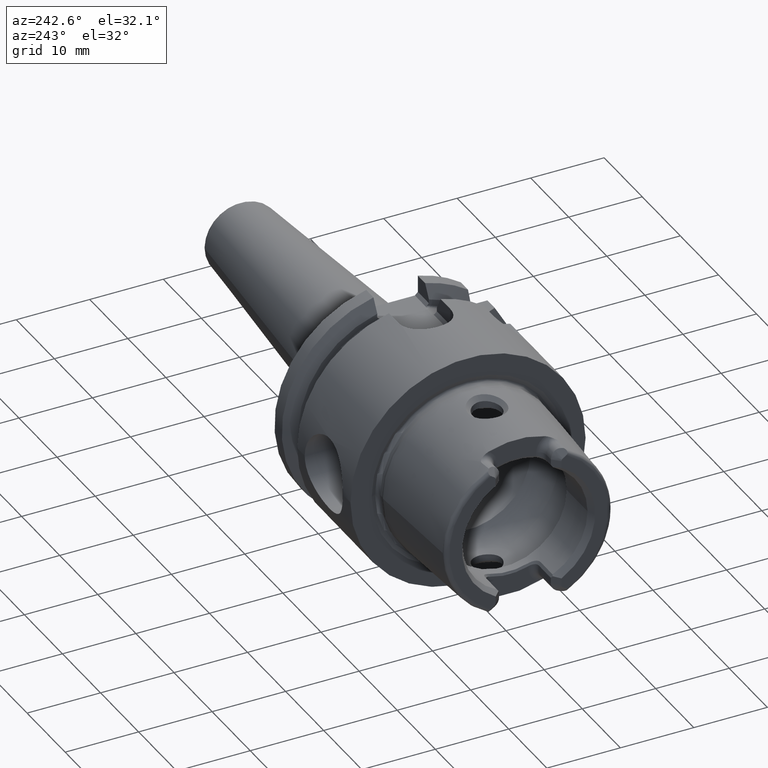
[diagram: clean part render]
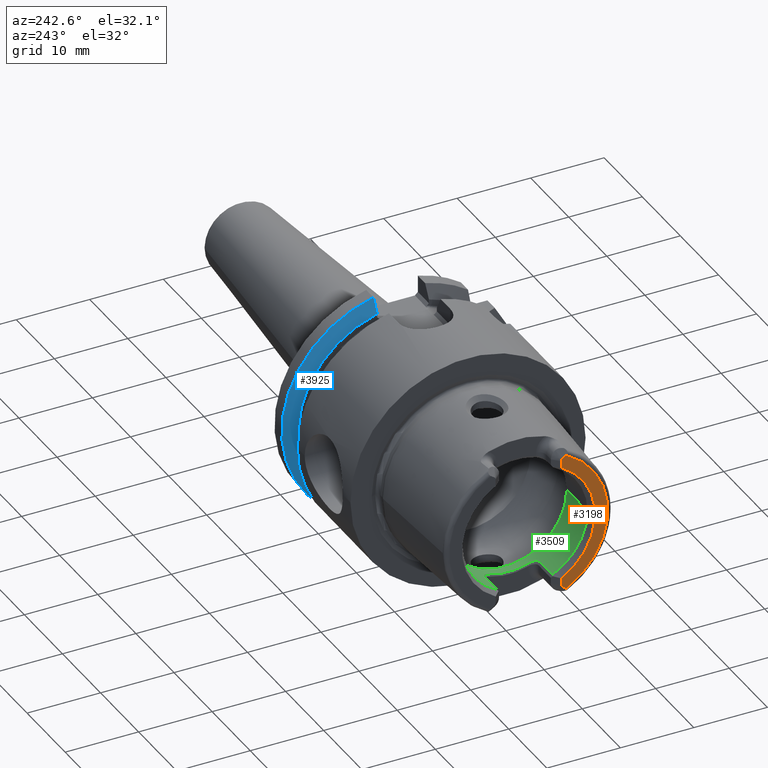
[diagram: same view with three faces highlighted in distinct colors, each labeled with its STEP entity id]
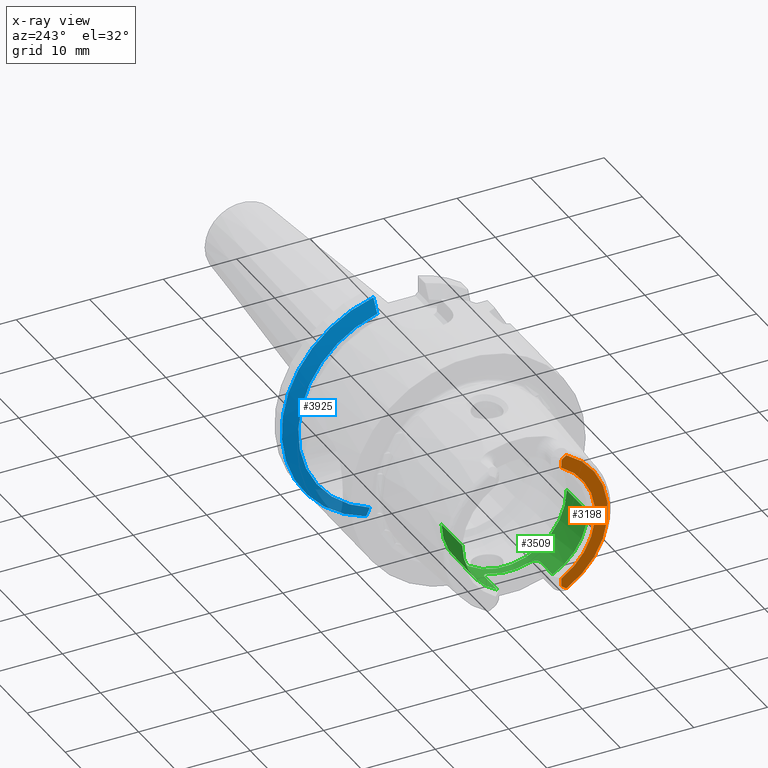
[diagram: x-ray of the same camera — body ghosted, the three highlighted faces saturated]
A machine part, auxiliary view with three faces highlighted in distinct colors.
The next image is the same camera in x-ray (body ghosted, the three faces saturated) — at least one of them is partly hidden behind the body in this view.
Their STEP definitions:

[orange] entity #3198 — the highlighted planar face has unit normal (1, 0, 0).
#104=DIRECTION('',(0.E0,0.E0,-1.E0));
#105=VECTOR('',#104,9.354316334249E-1);
#106=CARTESIAN_POINT('',(-1.59E1,-4.475E0,-7.884568366575E0));
#107=LINE('',#106,#105);
#108=DIRECTION('',(0.E0,0.E0,1.E0));
#109=VECTOR('',#108,9.354316334249E-1);
#110=CARTESIAN_POINT('',(-1.59E1,-4.475E0,7.884568366575E0));
#111=LINE('',#110,#109);
#112=CARTESIAN_POINT('',(-1.59E1,-4.905E0,8.82E0));
#113=DIRECTION('',(1.E0,0.E0,0.E0));
#114=DIRECTION('',(0.E0,1.E0,-1.652424966884E-14));
#115=AXIS2_PLACEMENT_3D('',#112,#113,#114);
#117=DIRECTION('',(0.E0,8.334669248958E-1,-5.525693486837E-1));
#118=VECTOR('',#117,5.697743001301E-1);
#119=CARTESIAN_POINT('',(-1.59E1,-5.142283213880E0,9.493230591625E0));
#120=LINE('',#119,#118);
#121=DIRECTION('',(0.E0,8.334669248958E-1,5.525693486837E-1));
#122=VECTOR('',#121,5.697743001300E-1);
#123=CARTESIAN_POINT('',(-1.59E1,-5.142283213880E0,-9.493230591625E0));
#124=LINE('',#123,#122);
#125=CARTESIAN_POINT('',(-1.59E1,-4.905E0,-8.82E0));
#126=DIRECTION('',(-1.E0,0.E0,0.E0));
#127=DIRECTION('',(0.E0,1.E0,1.652424966884E-14));
#128=AXIS2_PLACEMENT_3D('',#125,#126,#127);
#199=CARTESIAN_POINT('',(-1.59E1,0.E0,0.E0));
#200=DIRECTION('',(1.E0,0.E0,0.E0));
#201=DIRECTION('',(0.E0,-4.936034096438E-1,8.696871126952E-1));
#202=AXIS2_PLACEMENT_3D('',#199,#200,#201);
#343=CARTESIAN_POINT('',(-1.59E1,0.E0,0.E0));
#344=DIRECTION('',(-1.E0,0.E0,0.E0));
#345=DIRECTION('',(0.E0,-4.762915015347E-1,-8.792874419471E-1));
#346=AXIS2_PLACEMENT_3D('',#343,#344,#345);
#2719=CARTESIAN_POINT('',(-1.59E1,-4.475E0,7.884568366575E0));
#2720=CARTESIAN_POINT('',(-1.59E1,-4.475E0,8.82E0));
#2721=VERTEX_POINT('',#2719);
#2722=VERTEX_POINT('',#2720);
#2723=CARTESIAN_POINT('',(-1.59E1,-4.667395180066E0,9.178390777705E0));
#2724=VERTEX_POINT('',#2723);
#2725=CARTESIAN_POINT('',(-1.59E1,-5.142283213880E0,9.493230591625E0));
#2726=VERTEX_POINT('',#2725);
#2751=CARTESIAN_POINT('',(-1.59E1,-4.475E0,-7.884568366575E0));
#2752=CARTESIAN_POINT('',(-1.59E1,-4.475E0,-8.82E0));
#2753=VERTEX_POINT('',#2751);
#2754=VERTEX_POINT('',#2752);
#2755=CARTESIAN_POINT('',(-1.59E1,-4.667395180066E0,-9.178390777705E0));
#2756=VERTEX_POINT('',#2755);
#2757=CARTESIAN_POINT('',(-1.59E1,-5.142283213880E0,-9.493230591625E0));
#2758=VERTEX_POINT('',#2757);
#3176=CARTESIAN_POINT('',(-1.59E1,0.E0,0.E0));
#3177=DIRECTION('',(1.E0,0.E0,0.E0));
#3178=DIRECTION('',(0.E0,-1.E0,0.E0));
#3179=AXIS2_PLACEMENT_3D('',#3176,#3177,#3178);
#3180=PLANE('',#3179);
#3182=ORIENTED_EDGE('',*,*,#3181,.F.);
#3184=ORIENTED_EDGE('',*,*,#3183,.F.);
#3186=ORIENTED_EDGE('',*,*,#3185,.T.);
#3188=ORIENTED_EDGE('',*,*,#3187,.T.);
#3189=ORIENTED_EDGE('',*,*,#3138,.F.);
#3191=ORIENTED_EDGE('',*,*,#3190,.F.);
#3193=ORIENTED_EDGE('',*,*,#3192,.T.);
#3195=ORIENTED_EDGE('',*,*,#3194,.F.);
#3196=EDGE_LOOP('',(#3182,#3184,#3186,#3188,#3189,#3191,#3193,#3195));
#3197=FACE_OUTER_BOUND('',#3196,.F.);
#3198=ADVANCED_FACE('',(#3197),#3180,.F.);
#116=CIRCLE('',#115,4.3E-1);
#129=CIRCLE('',#128,4.3E-1);
#203=CIRCLE('',#202,9.065982755730E0);
#347=CIRCLE('',#346,1.079650423598E1);
#3138=EDGE_CURVE('',#2726,#2724,#120,.T.);
#3181=EDGE_CURVE('',#2753,#2754,#107,.T.);
#3183=EDGE_CURVE('',#2721,#2753,#203,.T.);
#3185=EDGE_CURVE('',#2721,#2722,#111,.T.);
#3187=EDGE_CURVE('',#2722,#2724,#116,.T.);
#3190=EDGE_CURVE('',#2758,#2726,#347,.T.);
#3192=EDGE_CURVE('',#2758,#2756,#124,.T.);
#3194=EDGE_CURVE('',#2754,#2756,#129,.T.);

[blue] entity #3925 — the highlighted conical surface has half-angle 60 deg.
#821=CARTESIAN_POINT('',(1.803515969889E1,0.E0,0.E0));
#822=DIRECTION('',(-1.E0,0.E0,0.E0));
#823=DIRECTION('',(0.E0,2.1965625E-1,9.755773325759E-1));
#824=AXIS2_PLACEMENT_3D('',#821,#822,#823);
#932=CARTESIAN_POINT('',(1.70375E1,0.E0,0.E0));
#933=DIRECTION('',(-1.E0,0.E0,0.E0));
#934=DIRECTION('',(0.E0,2.462513545373E-1,9.692059999755E-1));
#935=AXIS2_PLACEMENT_3D('',#932,#933,#934);
#1187=CARTESIAN_POINT('',(1.803515969889E1,4.5145E0,-1.534989543124E1));
#1188=CARTESIAN_POINT('',(1.791919126760E1,4.5145E0,-1.514052518142E1));
#1189=CARTESIAN_POINT('',(1.769065676801E1,4.5145E0,-1.472724518749E1));
#1190=CARTESIAN_POINT('',(1.735817545234E1,4.5145E0,-1.412384094513E1));
#1191=CARTESIAN_POINT('',(1.714325635016E1,4.5145E0,-1.373226833854E1));
#1192=CARTESIAN_POINT('',(1.70375E1,4.5145E0,-1.353917837927E1));
#1223=CARTESIAN_POINT('',(1.70375E1,3.5145E0,1.383251066096E1));
#1224=CARTESIAN_POINT('',(1.714397201617E1,3.5145E0,1.402278490772E1));
#1225=CARTESIAN_POINT('',(1.735984283575E1,3.5145E0,1.440808770705E1));
#1226=CARTESIAN_POINT('',(1.769235534520E1,3.5145E0,1.500023051802E1));
#1227=CARTESIAN_POINT('',(1.791991815052E1,3.5145E0,1.540463619913E1));
#1228=CARTESIAN_POINT('',(1.803515969889E1,3.5145E0,1.560923732121E1));
#2792=CARTESIAN_POINT('',(1.70375E1,3.5145E0,1.383251066096E1));
#2794=VERTEX_POINT('',#2792);
#2795=VERTEX_POINT('',#1228);
#2802=CARTESIAN_POINT('',(1.70375E1,4.5145E0,-1.353917837927E1));
#2804=VERTEX_POINT('',#2802);
#2805=VERTEX_POINT('',#1187);
#3911=CARTESIAN_POINT('',(1.753632984945E1,0.E0,0.E0));
#3912=DIRECTION('',(1.E0,0.E0,0.E0));
#3913=DIRECTION('',(0.E0,-1.E0,0.E0));
#3914=AXIS2_PLACEMENT_3D('',#3911,#3912,#3913);
#3915=CONICAL_SURFACE('',#3914,1.513600135643E1,6.E1);
#3917=ORIENTED_EDGE('',*,*,#3916,.T.);
#3919=ORIENTED_EDGE('',*,*,#3918,.F.);
#3920=ORIENTED_EDGE('',*,*,#3872,.F.);
#3922=ORIENTED_EDGE('',*,*,#3921,.F.);
#3923=EDGE_LOOP('',(#3917,#3919,#3920,#3922));
#3924=FACE_OUTER_BOUND('',#3923,.F.);
#3925=ADVANCED_FACE('',(#3924),#3915,.T.);
#825=CIRCLE('',#824,1.6E1);
#936=CIRCLE('',#935,1.427200271285E1);
#1193=B_SPLINE_CURVE_WITH_KNOTS('',3,(#1187,#1188,#1189,#1190,#1191,#1192),
.UNSPECIFIED.,.F.,.F.,(4,1,1,4),(0.E0,3.333333333333E-1,6.666666666667E-1,1.E0),
.UNSPECIFIED.);
#1229=B_SPLINE_CURVE_WITH_KNOTS('',3,(#1223,#1224,#1225,#1226,#1227,#1228),
.UNSPECIFIED.,.F.,.F.,(4,1,1,4),(0.E0,3.333333333333E-1,6.666666666667E-1,1.E0),
.UNSPECIFIED.);
#3872=EDGE_CURVE('',#2795,#2805,#825,.T.);
#3916=EDGE_CURVE('',#2794,#2804,#936,.T.);
#3918=EDGE_CURVE('',#2805,#2804,#1193,.T.);
#3921=EDGE_CURVE('',#2794,#2795,#1229,.T.);

[green] entity #3509 — the highlighted cylindrical surface (partial cylindrical patch) has radius 8.5175 mm, axis along (1, 0, 0).
#156=CARTESIAN_POINT('',(-1.495E1,0.E0,0.E0));
#157=DIRECTION('',(-1.E0,0.E0,0.E0));
#158=DIRECTION('',(0.E0,1.E0,0.E0));
#159=AXIS2_PLACEMENT_3D('',#156,#157,#158);
#178=CARTESIAN_POINT('',(-1.495E1,0.E0,0.E0));
#179=DIRECTION('',(-1.E0,0.E0,0.E0));
#180=DIRECTION('',(0.E0,-4.418380710390E-1,-8.970948216217E-1));
#181=AXIS2_PLACEMENT_3D('',#178,#179,#180);
#421=DIRECTION('',(1.E0,0.E0,0.E0));
#422=VECTOR('',#421,3.2E0);
#423=CARTESIAN_POINT('',(-1.495E1,-3.763355770075E0,-7.641005143163E0));
#424=LINE('',#423,#422);
#425=CARTESIAN_POINT('',(-1.067679491924E1,-2.625E0,-8.102911899435E0));
#426=CARTESIAN_POINT('',(-1.067430553121E1,-2.707537178454E0,
-8.076173352091E0));
#427=CARTESIAN_POINT('',(-1.068757529457E1,-2.865320378951E0,
-8.022289273851E0));
#428=CARTESIAN_POINT('',(-1.075181076571E1,-3.082293078668E0,
-7.941248881980E0));
#429=CARTESIAN_POINT('',(-1.085251663661E1,-3.273708222952E0,
-7.864017173150E0));
#430=CARTESIAN_POINT('',(-1.098092478E1,-3.435897958950E0,-7.794316401623E0));
#431=CARTESIAN_POINT('',(-1.114028966606E1,-3.574096590260E0,
-7.731737317878E0));
#432=CARTESIAN_POINT('',(-1.132485396268E1,-3.679909972228E0,
-7.681740270364E0));
#433=CARTESIAN_POINT('',(-1.153330291604E1,-3.748025683036E0,
-7.648586771067E0));
#434=CARTESIAN_POINT('',(-1.167642063343E1,-3.763355770075E0,
-7.641005143163E0));
#435=CARTESIAN_POINT('',(-1.175E1,-3.763355770075E0,-7.641005143163E0));
#437=CARTESIAN_POINT('',(-1.067679491924E1,2.625E0,-8.102911899435E0));
#438=CARTESIAN_POINT('',(-1.067679491924E1,2.201908065342E0,-8.239975752810E0));
#439=CARTESIAN_POINT('',(-1.067680271208E1,1.334214840700E0,-8.447704734541E0));
#440=CARTESIAN_POINT('',(-1.067679881566E1,1.485478406948E-13,
-8.552411130317E0));
#441=CARTESIAN_POINT('',(-1.067680271208E1,-1.334214840700E0,
-8.447704734544E0));
#442=CARTESIAN_POINT('',(-1.067679491924E1,-2.201908065341E0,
-8.239975752804E0));
#443=CARTESIAN_POINT('',(-1.067679491924E1,-2.625E0,-8.102911899435E0));
#445=CARTESIAN_POINT('',(-1.175E1,3.763355770075E0,-7.641005143163E0));
#446=CARTESIAN_POINT('',(-1.167643833873E1,3.763355770075E0,-7.641005143163E0));
#447=CARTESIAN_POINT('',(-1.153358161222E1,3.747889478845E0,-7.648650977797E0));
#448=CARTESIAN_POINT('',(-1.132853435414E1,3.681387233156E0,-7.681026452959E0));
#449=CARTESIAN_POINT('',(-1.114335729210E1,3.576301387833E0,-7.730713793210E0));
#450=CARTESIAN_POINT('',(-1.098414297931E1,3.439129800349E0,-7.792879432679E0));
#451=CARTESIAN_POINT('',(-1.085556951397E1,3.278370193193E0,-7.862069385320E0));
#452=CARTESIAN_POINT('',(-1.075340853211E1,3.086504989838E0,-7.939624758701E0));
#453=CARTESIAN_POINT('',(-1.068792110848E1,2.867936512210E0,-8.021376119578E0));
#454=CARTESIAN_POINT('',(-1.067427612604E1,2.708517789852E0,-8.075855675563E0));
#455=CARTESIAN_POINT('',(-1.067679491924E1,2.625E0,-8.102911899435E0));
#457=DIRECTION('',(1.E0,0.E0,0.E0));
#458=VECTOR('',#457,3.2E0);
#459=CARTESIAN_POINT('',(-1.495E1,3.763355770075E0,-7.641005143163E0));
#460=LINE('',#459,#458);
#461=DIRECTION('',(-1.E0,0.E0,0.E0));
#462=VECTOR('',#461,5.462753360521E0);
#463=CARTESIAN_POINT('',(-9.487246639479E0,8.5175E0,0.E0));
#464=LINE('',#463,#462);
#465=CARTESIAN_POINT('',(-9.487246639479E0,0.E0,0.E0));
#466=DIRECTION('',(-1.E0,0.E0,0.E0));
#467=DIRECTION('',(0.E0,1.E0,0.E0));
#468=AXIS2_PLACEMENT_3D('',#465,#466,#467);
#470=DIRECTION('',(-1.E0,0.E0,0.E0));
#471=VECTOR('',#470,5.462753360521E0);
#472=CARTESIAN_POINT('',(-9.487246639479E0,-8.5175E0,0.E0));
#473=LINE('',#472,#471);
#2693=CARTESIAN_POINT('',(-1.175E1,-3.763355770075E0,-7.641005143163E0));
#2694=VERTEX_POINT('',#2693);
#2695=CARTESIAN_POINT('',(-1.067679491924E1,-2.625E0,-8.102911899435E0));
#2696=VERTEX_POINT('',#2695);
#2697=CARTESIAN_POINT('',(-1.175E1,3.763355770075E0,-7.641005143163E0));
#2698=VERTEX_POINT('',#2697);
#2699=CARTESIAN_POINT('',(-1.067679491924E1,2.625E0,-8.102911899435E0));
#2700=VERTEX_POINT('',#2699);
#2983=CARTESIAN_POINT('',(-9.487246639479E0,8.5175E0,0.E0));
#2984=VERTEX_POINT('',#2983);
#2985=CARTESIAN_POINT('',(-1.495E1,8.5175E0,0.E0));
#2986=VERTEX_POINT('',#2985);
#2995=CARTESIAN_POINT('',(-9.487246639479E0,-8.5175E0,0.E0));
#2996=VERTEX_POINT('',#2995);
#2997=CARTESIAN_POINT('',(-1.495E1,-8.5175E0,0.E0));
#2998=VERTEX_POINT('',#2997);
#3003=CARTESIAN_POINT('',(-1.495E1,-3.763355770075E0,-7.641005143163E0));
#3004=VERTEX_POINT('',#3003);
#3005=CARTESIAN_POINT('',(-1.495E1,3.763355770075E0,-7.641005143163E0));
#3006=VERTEX_POINT('',#3005);
#3485=CARTESIAN_POINT('',(-1.70925E1,0.E0,0.E0));
#3486=DIRECTION('',(1.E0,0.E0,0.E0));
#3487=DIRECTION('',(0.E0,-1.E0,0.E0));
#3488=AXIS2_PLACEMENT_3D('',#3485,#3486,#3487);
#3489=CYLINDRICAL_SURFACE('',#3488,8.5175E0);
#3491=ORIENTED_EDGE('',*,*,#3490,.T.);
#3493=ORIENTED_EDGE('',*,*,#3492,.F.);
#3495=ORIENTED_EDGE('',*,*,#3494,.F.);
#3497=ORIENTED_EDGE('',*,*,#3496,.F.);
#3498=ORIENTED_EDGE('',*,*,#3477,.F.);
#3499=ORIENTED_EDGE('',*,*,#3229,.F.);
#3501=ORIENTED_EDGE('',*,*,#3500,.F.);
#3503=ORIENTED_EDGE('',*,*,#3502,.T.);
#3505=ORIENTED_EDGE('',*,*,#3504,.T.);
#3506=ORIENTED_EDGE('',*,*,#3245,.F.);
#3507=EDGE_LOOP('',(#3491,#3493,#3495,#3497,#3498,#3499,#3501,#3503,#3505,
#3506));
#3508=FACE_OUTER_BOUND('',#3507,.F.);
#3509=ADVANCED_FACE('',(#3508),#3489,.F.);
#160=CIRCLE('',#159,8.5175E0);
#182=CIRCLE('',#181,8.5175E0);
#436=B_SPLINE_CURVE_WITH_KNOTS('',3,(#425,#426,#427,#428,#429,#430,#431,#432,
#433,#434,#435),.UNSPECIFIED.,.F.,.F.,(4,1,1,1,1,1,1,1,4),(0.E0,1.25E-1,2.5E-1,
3.75E-1,5.E-1,6.25E-1,7.5E-1,8.75E-1,1.E0),.UNSPECIFIED.);
#444=B_SPLINE_CURVE_WITH_KNOTS('',3,(#437,#438,#439,#440,#441,#442,#443),
.UNSPECIFIED.,.F.,.F.,(4,1,1,1,4),(0.E0,2.5E-1,5.E-1,7.5E-1,1.E0),
.UNSPECIFIED.);
#456=B_SPLINE_CURVE_WITH_KNOTS('',3,(#445,#446,#447,#448,#449,#450,#451,#452,
#453,#454,#455),.UNSPECIFIED.,.F.,.F.,(4,1,1,1,1,1,1,1,4),(0.E0,1.25E-1,2.5E-1,
3.75E-1,5.E-1,6.25E-1,7.5E-1,8.75E-1,1.E0),.UNSPECIFIED.);
#469=CIRCLE('',#468,8.5175E0);
#3229=EDGE_CURVE('',#2986,#3006,#160,.T.);
#3245=EDGE_CURVE('',#3004,#2998,#182,.T.);
#3477=EDGE_CURVE('',#3006,#2698,#460,.T.);
#3490=EDGE_CURVE('',#3004,#2694,#424,.T.);
#3492=EDGE_CURVE('',#2696,#2694,#436,.T.);
#3494=EDGE_CURVE('',#2700,#2696,#444,.T.);
#3496=EDGE_CURVE('',#2698,#2700,#456,.T.);
#3500=EDGE_CURVE('',#2984,#2986,#464,.T.);
#3502=EDGE_CURVE('',#2984,#2996,#469,.T.);
#3504=EDGE_CURVE('',#2996,#2998,#473,.T.);